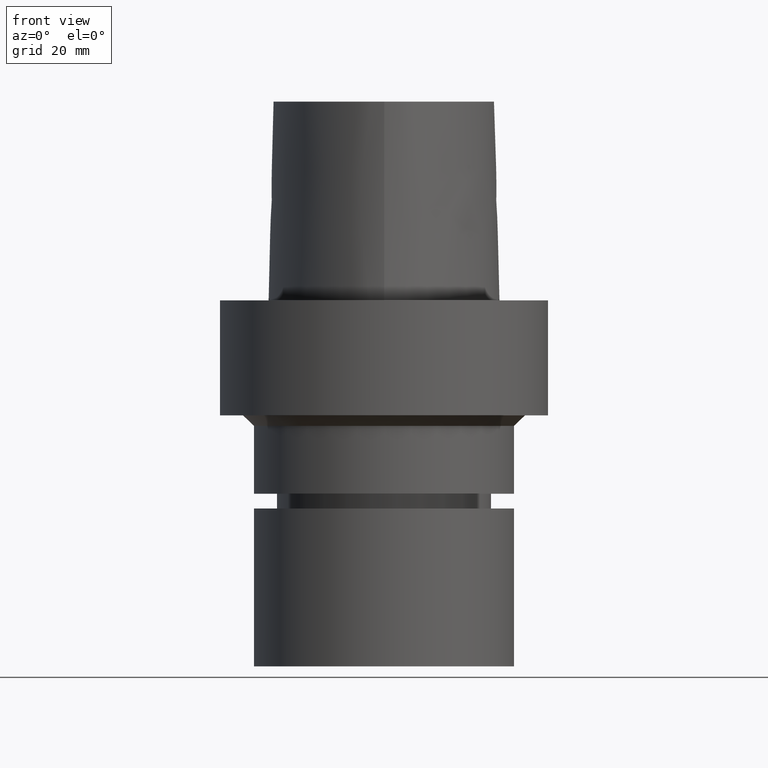
[diagram: clean part render]
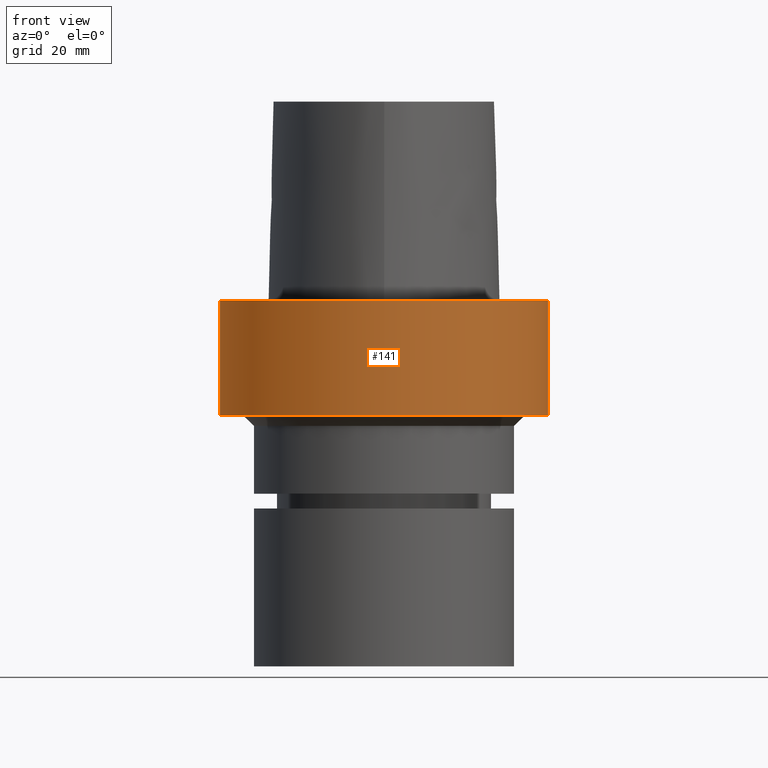
[diagram: same view with one face highlighted and labeled with its STEP entity id]
A machine part, front view. The second image highlights one B-rep face of the part: STEP entity #141.
In plain terms, the highlighted cylindrical surface (bore or boss wall) has radius 31.5 mm, axis along (0, 0, -1).
Its self-contained STEP definition (entity closure, byte-faithful):
#88=EDGE_CURVE('Unnamed[1]',#216,#216,#217,.T.);
#131=EDGE_CURVE('Unnamed[1]',#278,#278,#279,.T.);
#141=ADVANCED_FACE('Unnamed[1]',(#291,#292),#293,.T.);
#216=VERTEX_POINT('',#397);
#217=CIRCLE('',#398,31.5);
#278=VERTEX_POINT('',#646);
#279=CIRCLE('',#647,31.5);
#291=FACE_BOUND('',#664,.T.);
#292=FACE_BOUND('',#665,.T.);
#293=CYLINDRICAL_SURFACE('',#666,31.5);
#397=CARTESIAN_POINT('',(1.34711147906212E-015,31.5,-22.0000000000006));
#398=AXIS2_PLACEMENT_3D('',#762,#763,#764);
#646=CARTESIAN_POINT('',(-3.88267476788467E-031,31.5,3.85763741731416E-015));
#647=AXIS2_PLACEMENT_3D('',#824,#825,#826);
#664=EDGE_LOOP('',(#837));
#665=EDGE_LOOP('',(#838));
#666=AXIS2_PLACEMENT_3D('',#839,#840,#841);
#762=CARTESIAN_POINT('',(1.34711147906212E-015,2.69422295812425E-015,-22.0000000000006));
#763=DIRECTION('',(6.12323399573677E-017,1.22464679914735E-016,-1.0));
#764=DIRECTION('',(-1.23259516440783E-032,1.0,1.22464679914735E-016));
#824=CARTESIAN_POINT('',(0.0,0.0,0.0));
#825=DIRECTION('',(6.12323399573677E-017,1.22464679914735E-016,-1.0));
#826=DIRECTION('',(-1.23259516440783E-032,1.0,1.22464679914735E-016));
#837=ORIENTED_EDGE('',*,*,#88,.F.);
#838=ORIENTED_EDGE('',*,*,#131,.T.);
#839=CARTESIAN_POINT('',(6.73555739531062E-016,1.34711147906212E-015,-11.0000000000003));
#840=DIRECTION('',(6.12323399573677E-017,1.22464679914735E-016,-1.0));
#841=DIRECTION('',(-1.23259516440783E-032,1.0,1.22464679914735E-016));